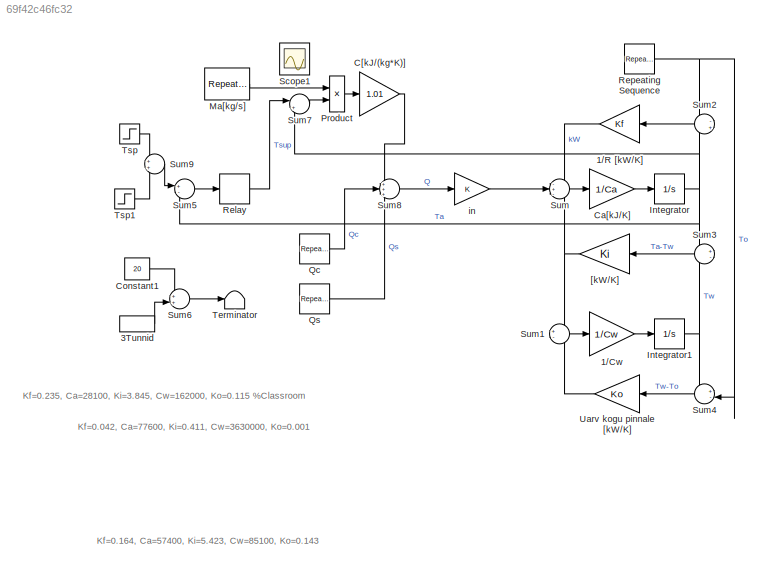
MODEL slx_69f42c46fc32
KIND model
CONFIG AbsTol = 1e-6
CONFIG EnableMultiTasking = on
CONFIG FixedStep = auto
CONFIG MaxStep = 10
CONFIG MinStep = 0.00000001
CONFIG RelTol = 1e-6
CONFIG SampleTimeConstraint = Unconstrained
CONFIG Solver = ode45
CONFIG SolverName = ode45
CONFIG StartTime = 0.0
CONFIG StopTime = 86400
BLOCK [Gain] 1//Cw
  Gain = 1/Cw
  OutDataTypeStr = Inherit: Inherit via internal rule
  ParamDataTypeStr = Inherit: Inherit via internal rule
  SaturateOnIntegerOverflow = off
BLOCK [Gain] 1//R [kW//K]
  Gain = Kf
  OutDataTypeStr = Inherit: Inherit via internal rule
  ParamDataTypeStr = Inherit: Inherit via internal rule
  SaturateOnIntegerOverflow = off
BLOCK [DiscretePulseGenerator] 3Tunnid
  Period = 3600*3
  Ports = [0, 1]
  PulseType = Time based
  PulseWidth = 99
BLOCK [Gain] C[kJ//(kg*K)]
  Gain = 1.01
  OutDataTypeStr = Inherit: Inherit via internal rule
  ParamDataTypeStr = Inherit: Inherit via internal rule
  SaturateOnIntegerOverflow = off
BLOCK [Gain] Ca[kJ//K]
  Gain = 1/Ca
  OutDataTypeStr = Inherit: Inherit via internal rule
  ParamDataTypeStr = Inherit: Inherit via internal rule
  SaturateOnIntegerOverflow = off
BLOCK [Constant] Constant1
  Value = 20
BLOCK [Integrator] Integrator
  InitialCondition = 20.5
  Ports = [1, 1]
BLOCK [Integrator] Integrator1
  InitialCondition = 20
  Ports = [1, 1]
BLOCK [Reference] Ma[kg//s]  REF=simulink/Sources/Repeating
Sequence
  Ports = [0, 1]
  SourceBlock = simulink/Sources/Repeating\nSequence
  SourceProductBaseCode = SL
  SourceProductName = Simulink
  SourceType = Repeating table
BLOCK [Product] Product
  InputSameDT = off
  OutDataTypeStr = Inherit: Inherit via internal rule
  Ports = [2, 1]
  SaturateOnIntegerOverflow = off
BLOCK [Reference] Qc  REF=simulink/Sources/Repeating
Sequence
  Ports = [0, 1]
  SourceBlock = simulink/Sources/Repeating\nSequence
  SourceProductBaseCode = SL
  SourceProductName = Simulink
  SourceType = Repeating table
BLOCK [Reference] Qs  REF=simulink/Sources/Repeating
Sequence
  Ports = [0, 1]
  SourceBlock = simulink/Sources/Repeating\nSequence
  SourceProductBaseCode = SL
  SourceProductName = Simulink
  SourceType = Repeating table
BLOCK [Relay] Relay
  OffOutputValue = 18
  OffSwitchValue = -0.5
  OnOutputValue = 21
  OnSwitchValue = 0.5
BLOCK [Reference] Repeating Sequence  REF=simulink/Sources/Repeating
Sequence
  Ports = [0, 1]
  SourceBlock = simulink/Sources/Repeating\nSequence
  SourceProductBaseCode = SL
  SourceProductName = Simulink
  SourceType = Repeating table
BLOCK [Scope] Scope1
  IOType = viewer
  NumInputPorts = 1
  Ports = []
  ScopeSpecificationString = Simulink.scopes.TimeScopeBlockCfg('CurrentConfiguration', extmgr.ConfigurationSet(extmgr.Configuration('Core','General UI',true),extmgr.Configuration('Core','Source UI',true),extmgr.Configuration('Sources','WiredSimulink',true,'DataLoggingVariableName','ScopeData1'),extmgr.Configuration('Visuals','Time Domain',true,'SerializedDisplays',{struct('MinYLimReal','7.38719','MaxYLimReal','13.62365','YLab...<+4151ch>
BLOCK [Sum] Sum
  IconShape = round
  InputSameDT = off
  Inputs = -+-
  OutDataTypeStr = Inherit: Inherit via internal rule
  Ports = [3, 1]
  SaturateOnIntegerOverflow = off
BLOCK [Sum] Sum1
  IconShape = round
  InputSameDT = off
  Inputs = +-
  OutDataTypeStr = Inherit: Inherit via internal rule
  Ports = [2, 1]
  SaturateOnIntegerOverflow = off
BLOCK [Sum] Sum2
  IconShape = round
  InputSameDT = off
  Inputs = -+
  OutDataTypeStr = Inherit: Inherit via internal rule
  Ports = [2, 1]
  SaturateOnIntegerOverflow = off
BLOCK [Sum] Sum3
  IconShape = round
  InputSameDT = off
  Inputs = +-
  OutDataTypeStr = Inherit: Inherit via internal rule
  Ports = [2, 1]
  SaturateOnIntegerOverflow = off
BLOCK [Sum] Sum4
  IconShape = round
  InputSameDT = off
  Inputs = +-
  OutDataTypeStr = Inherit: Inherit via internal rule
  Ports = [2, 1]
  SaturateOnIntegerOverflow = off
BLOCK [Sum] Sum5
  IconShape = round
  InputSameDT = off
  Inputs = +-
  OutDataTypeStr = Inherit: Inherit via internal rule
  Ports = [2, 1]
  SaturateOnIntegerOverflow = off
BLOCK [Sum] Sum6
  IconShape = round
  InputSameDT = off
  OutDataTypeStr = Inherit: Inherit via internal rule
  Ports = [2, 1]
  SaturateOnIntegerOverflow = off
BLOCK [Sum] Sum7
  IconShape = round
  InputSameDT = off
  Inputs = |+-
  OutDataTypeStr = Inherit: Inherit via internal rule
  Ports = [2, 1]
  SaturateOnIntegerOverflow = off
BLOCK [Sum] Sum8
  IconShape = round
  InputSameDT = off
  Inputs = +++
  OutDataTypeStr = Inherit: Inherit via internal rule
  Ports = [3, 1]
  SaturateOnIntegerOverflow = off
BLOCK [Sum] Sum9
  IconShape = round
  InputSameDT = off
  OutDataTypeStr = Inherit: Inherit via internal rule
  Ports = [2, 1]
  SaturateOnIntegerOverflow = off
BLOCK [Terminator] Terminator
BLOCK [Step] Tsp
  After = 20.5
  Before = 18
  SampleTime = 0
  Time = 6*3600
BLOCK [Step] Tsp1
  After = -2.5
  SampleTime = 0
  Time = 19*3600
BLOCK [Gain] Uarv kogu pinnale [kW//K]
  Gain = Ko
  OutDataTypeStr = Inherit: Inherit via internal rule
  ParamDataTypeStr = Inherit: Inherit via internal rule
  SaturateOnIntegerOverflow = off
BLOCK [Gain] [kW//K]
  Gain = Ki
  OutDataTypeStr = Inherit: Inherit via internal rule
  ParamDataTypeStr = Inherit: Inherit via internal rule
  SaturateOnIntegerOverflow = off
BLOCK [Gain] in
  OutDataTypeStr = Inherit: Inherit via internal rule
  ParamDataTypeStr = Inherit: Inherit via internal rule
  SaturateOnIntegerOverflow = off
ANNOTATION (root): Kf=0.042, Ca=77600, Ki=0.411, Cw=3630000, Ko=0.001
ANNOTATION (root): Kf=0.164, Ca=57400, Ki=5.423, Cw=85100, Ko=0.143
ANNOTATION (root): Kf=0.235, Ca=28100, Ki=3.845, Cw=162000, Ko=0.115 %Classroom
LINE 1//Cw:1 -> Integrator1:1
LINE 1//R [kW//K]:1 -> Sum:1
LINE 3Tunnid:1 -> Sum6:2
LINE C[kJ//(kg*K)]:1 -> Sum8:1
LINE Ca[kJ//K]:1 -> Integrator:1
LINE Constant1:1 -> Sum6:1
NET Integrator1:1 -> Sum3:2, Sum4:1
NET Integrator:1 -> Sum2:2, Sum3:1, Sum5:2, Sum7:2
LINE Ma[kg//s]:1 -> Product:1
LINE Product:1 -> C[kJ//(kg*K)]:1
LINE Qc:1 -> Sum8:2
LINE Qs:1 -> Sum8:3
LINE Relay:1 -> Sum7:1
NET Repeating Sequence:1 -> Sum2:1, Sum4:2
LINE Sum1:1 -> 1//Cw:1
LINE Sum2:1 -> 1//R [kW//K]:1
LINE Sum3:1 -> [kW//K]:1
LINE Sum4:1 -> Uarv kogu pinnale [kW//K]:1
LINE Sum5:1 -> Relay:1
LINE Sum6:1 -> Terminator:1
LINE Sum7:1 -> Product:2
LINE Sum8:1 -> in:1
LINE Sum9:1 -> Sum5:1
LINE Sum:1 -> Ca[kJ//K]:1
LINE Tsp1:1 -> Sum9:2
LINE Tsp:1 -> Sum9:1
LINE Uarv kogu pinnale [kW//K]:1 -> Sum1:2
NET [kW//K]:1 -> Sum1:1, Sum:3
LINE in:1 -> Sum:2
note: NET lines group one-source signal fan-out (src -> all destinations, sorted); 1:1 wires keep LINE
